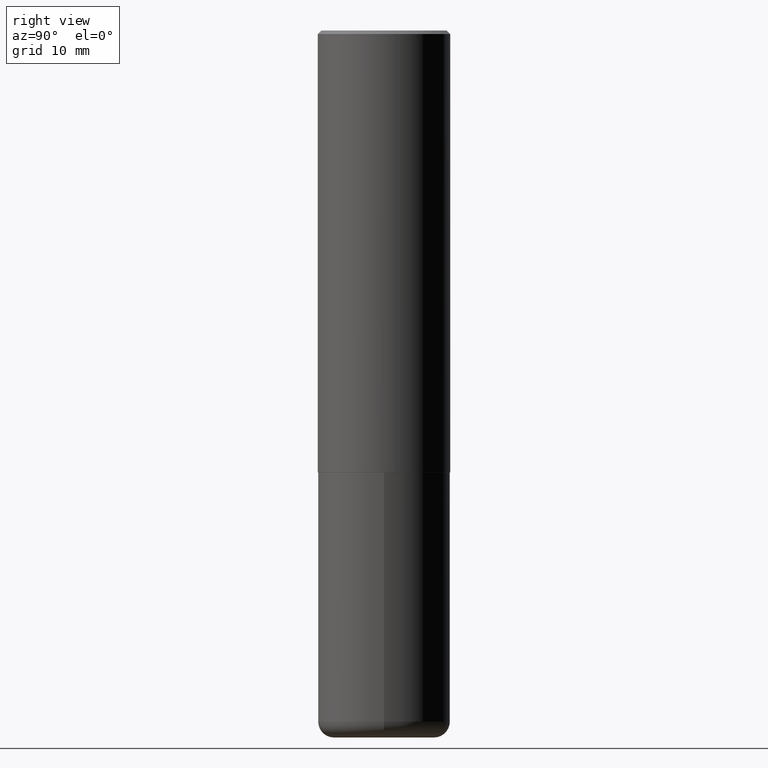
[diagram: clean part render]
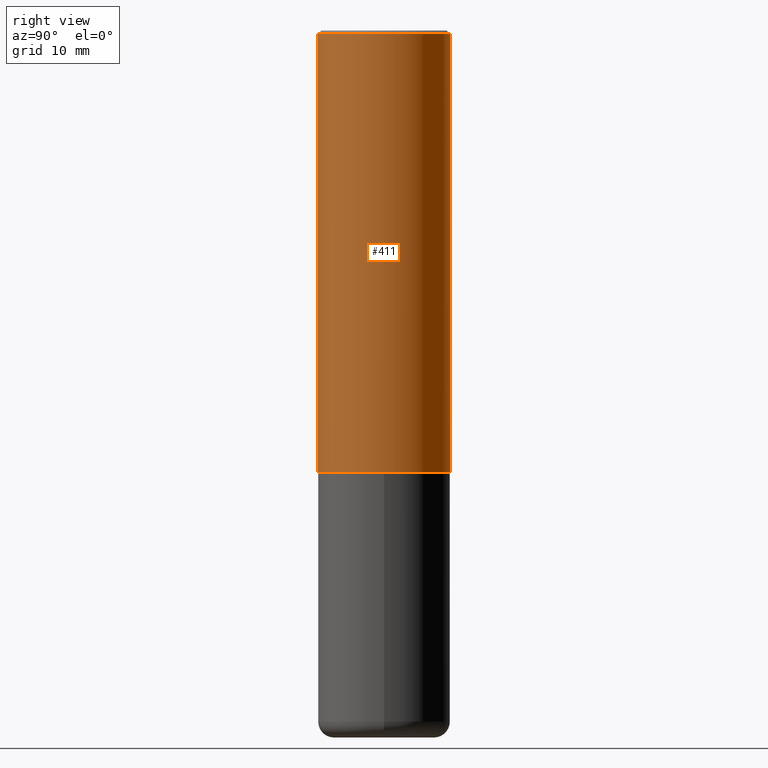
[diagram: same view with one face highlighted and labeled with its STEP entity id]
A machine part, right view. The second image highlights one B-rep face of the part: STEP entity #411.
In plain terms, the highlighted cylindrical surface (partial cylindrical patch) has radius 9.525 mm, axis along (-0, 0, 1).
Its self-contained STEP definition (entity closure, byte-faithful):
#12 = DIRECTION ( 'NONE',  ( -6.982962677686266711E-15, -1.000000000000000000, 2.913971193241878794E-15 ) ) ;
#28 = EDGE_LOOP ( 'NONE', ( #416, #149, #164, #342 ) ) ;
#55 = DIRECTION ( 'NONE',  ( -2.444465131706345255E-29, 3.492918657822378473E-15, 1.000000000000000000 ) ) ;
#83 = CARTESIAN_POINT ( 'NONE',  ( 2.664535259100376486E-15, 0.3750000000000001665, -1.309844496683392470E-15 ) ) ;
#93 = EDGE_CURVE ( 'NONE', #213, #139, #144, .T. ) ;
#139 = VERTEX_POINT ( 'NONE', #193 ) ;
#144 = CIRCLE ( 'NONE', #187, 0.3750000000000000555 ) ;
#149 = ORIENTED_EDGE ( 'NONE', *, *, #350, .T. ) ;
#160 = EDGE_CURVE ( 'NONE', #174, #213, #391, .T. ) ;
#164 = ORIENTED_EDGE ( 'NONE', *, *, #93, .F. ) ;
#166 = VECTOR ( 'NONE', #203, 39.37007874015748143 ) ;
#168 = AXIS2_PLACEMENT_3D ( 'NONE', #325, #329, #12 ) ;
#170 = CARTESIAN_POINT ( 'NONE',  ( -2.618611004132351200E-15, -0.3750000000000001665, 1.309844496683392470E-15 ) ) ;
#174 = VERTEX_POINT ( 'NONE', #200 ) ;
#182 = FACE_OUTER_BOUND ( 'NONE', #28, .T. ) ;
#187 = AXIS2_PLACEMENT_3D ( 'NONE', #381, #349, #220 ) ;
#193 = CARTESIAN_POINT ( 'NONE',  ( 2.618611004132350411E-15, 0.3749999999999999445, -0.02000000000000139513 ) ) ;
#200 = CARTESIAN_POINT ( 'NONE',  ( -2.618611004132290852E-15, -0.3750000000000090483, -2.498999999999998778 ) ) ;
#203 = DIRECTION ( 'NONE',  ( -2.444465131706345255E-29, 3.492918657822378868E-15, 1.000000000000000000 ) ) ;
#213 = VERTEX_POINT ( 'NONE', #399 ) ;
#220 = DIRECTION ( 'NONE',  ( -6.982962677686265922E-15, -1.000000000000000000, 3.494488891895536035E-15 ) ) ;
#242 = CARTESIAN_POINT ( 'NONE',  ( 0.000000000000000000, 0.000000000000000000, 0.000000000000000000 ) ) ;
#243 = EDGE_CURVE ( 'NONE', #174, #327, #357, .T. ) ;
#246 = CARTESIAN_POINT ( 'NONE',  ( 2.664535259100408040E-15, 0.3749999999999915623, -2.499000000000000998 ) ) ;
#266 = VECTOR ( 'NONE', #366, 39.37007874015748143 ) ;
#325 = CARTESIAN_POINT ( 'NONE',  ( 6.108718364134156127E-29, -8.728803725898123939E-15, -2.498999999999999666 ) ) ;
#327 = VERTEX_POINT ( 'NONE', #246 ) ;
#329 = DIRECTION ( 'NONE',  ( -2.444465131706345255E-29, 3.492918657822378473E-15, 1.000000000000000000 ) ) ;
#342 = ORIENTED_EDGE ( 'NONE', *, *, #160, .F. ) ;
#349 = DIRECTION ( 'NONE',  ( -2.444465131706345255E-29, 3.492918657822378473E-15, 1.000000000000000000 ) ) ;
#350 = EDGE_CURVE ( 'NONE', #327, #139, #407, .T. ) ;
#357 = CIRCLE ( 'NONE', #168, 0.3750000000000002776 ) ;
#366 = DIRECTION ( 'NONE',  ( -2.444465131706345255E-29, 3.492918657822378868E-15, 1.000000000000000000 ) ) ;
#371 = AXIS2_PLACEMENT_3D ( 'NONE', #242, #55, #404 ) ;
#381 = CARTESIAN_POINT ( 'NONE',  ( 4.888930263412711914E-31, -6.985837315644786578E-17, -0.02000000000000008715 ) ) ;
#391 = LINE ( 'NONE', #170, #166 ) ;
#399 = CARTESIAN_POINT ( 'NONE',  ( -2.572686749164323547E-15, -0.3750000000000001110, -0.01999999999999877570 ) ) ;
#403 = CYLINDRICAL_SURFACE ( 'NONE', #371, 0.3750000000000001665 ) ;
#404 = DIRECTION ( 'NONE',  ( -6.982962677686266711E-15, -1.000000000000000000, 3.492918657822378473E-15 ) ) ;
#407 = LINE ( 'NONE', #83, #266 ) ;
#411 = ADVANCED_FACE ( 'NONE', ( #182 ), #403, .T. ) ;
#416 = ORIENTED_EDGE ( 'NONE', *, *, #243, .T. ) ;